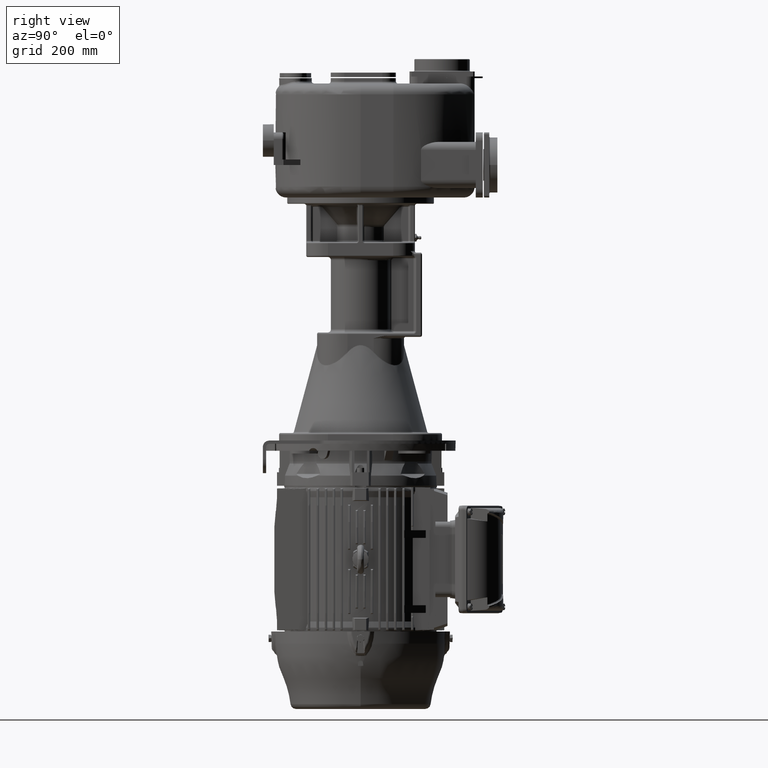
[diagram: clean part render]
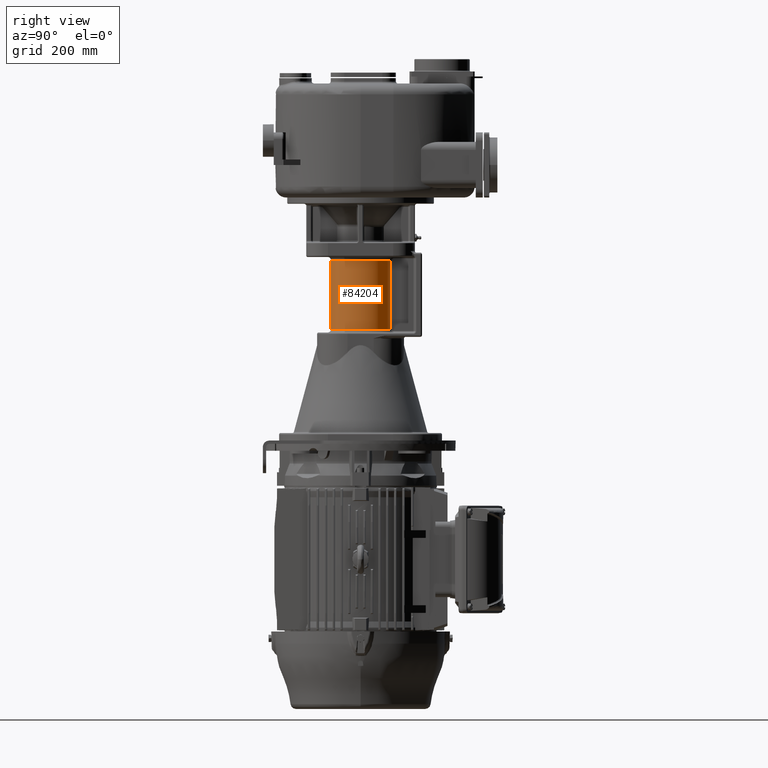
[diagram: same view with one face highlighted and labeled with its STEP entity id]
A machine part, right view. The second image highlights one B-rep face of the part: STEP entity #84204.
In plain terms, the highlighted cylindrical surface (edge-blend (fillet) strip) has radius 55 mm, axis along (0, 0, -1).
Its self-contained STEP definition (entity closure, byte-faithful):
#25786=CARTESIAN_POINT('',(-6.637931034794E0,2.125979658216E2,-3.475E2));
#25788=CARTESIAN_POINT('',(0.E0,1.58E2,-3.475E2));
#25789=DIRECTION('',(0.E0,0.E0,1.E0));
#25790=DIRECTION('',(-1.206896551724E-1,9.926902876196E-1,0.E0));
#25791=AXIS2_PLACEMENT_3D('',#25788,#25789,#25790);
#26610=DIRECTION('',(1.369962760906E-13,1.127469071735E-12,-1.E0));
#26611=VECTOR('',#26610,1.27E2);
#26612=CARTESIAN_POINT('',(6.637931034777E0,2.125979658215E2,-2.205E2));
#26613=LINE('',#26612,#26611);
#26614=DIRECTION('',(1.370032696215E-13,-1.127469071735E-12,1.E0));
#26615=VECTOR('',#26614,1.27E2);
#26616=CARTESIAN_POINT('',(-6.637931034794E0,2.125979658216E2,-3.475E2));
#26617=LINE('',#26616,#26615);
#26764=CARTESIAN_POINT('',(6.637931034777E0,2.125979658215E2,-2.205E2));
#26766=CARTESIAN_POINT('',(0.E0,1.58E2,-2.205E2));
#26767=DIRECTION('',(0.E0,0.E0,-1.E0));
#26768=DIRECTION('',(1.206896551724E-1,9.926902876196E-1,0.E0));
#26769=AXIS2_PLACEMENT_3D('',#26766,#26767,#26768);
#46228=VERTEX_POINT('',#26764);
#46229=CARTESIAN_POINT('',(6.637931034794E0,2.125979658216E2,-3.475E2));
#46230=VERTEX_POINT('',#46229);
#46243=VERTEX_POINT('',#25786);
#46244=CARTESIAN_POINT('',(-6.637931034777E0,2.125979658215E2,-2.205E2));
#46245=VERTEX_POINT('',#46244);
#84191=CARTESIAN_POINT('',(0.E0,1.58E2,-1.8885E2));
#84192=DIRECTION('',(0.E0,0.E0,-1.E0));
#84193=DIRECTION('',(0.E0,-1.E0,0.E0));
#84194=AXIS2_PLACEMENT_3D('',#84191,#84192,#84193);
#84195=CYLINDRICAL_SURFACE('',#84194,5.5E1);
#84196=ORIENTED_EDGE('',*,*,#84182,.T.);
#84197=ORIENTED_EDGE('',*,*,#82505,.F.);
#84199=ORIENTED_EDGE('',*,*,#84198,.T.);
#84201=ORIENTED_EDGE('',*,*,#84200,.F.);
#84202=EDGE_LOOP('',(#84196,#84197,#84199,#84201));
#84203=FACE_OUTER_BOUND('',#84202,.F.);
#84204=ADVANCED_FACE('',(#84203),#84195,.T.);
#25792=CIRCLE('',#25791,5.5E1);
#26770=CIRCLE('',#26769,5.5E1);
#82505=EDGE_CURVE('',#46243,#46230,#25792,.T.);
#84182=EDGE_CURVE('',#46228,#46230,#26613,.T.);
#84198=EDGE_CURVE('',#46243,#46245,#26617,.T.);
#84200=EDGE_CURVE('',#46228,#46245,#26770,.T.);